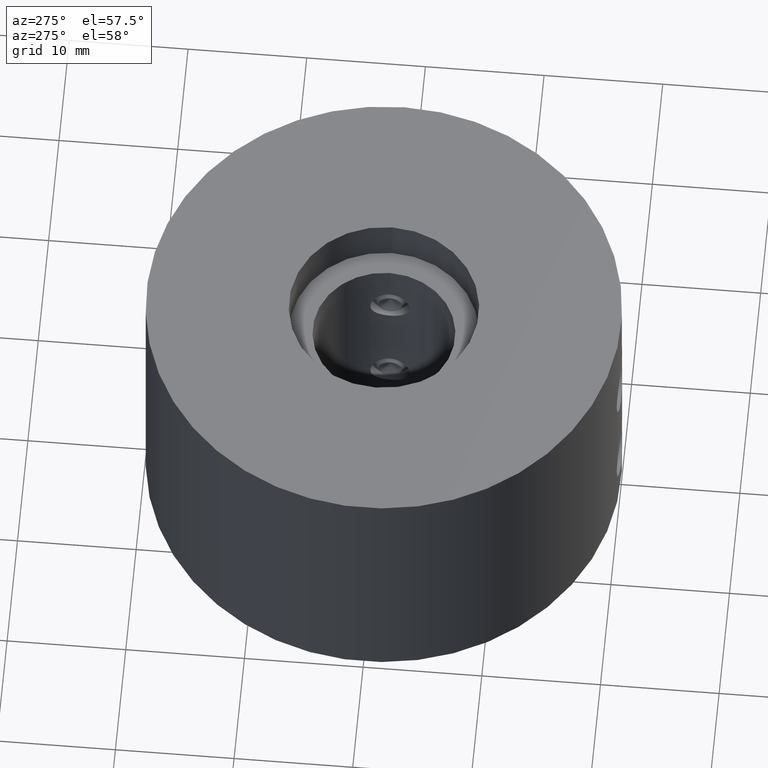
[diagram: clean part render]
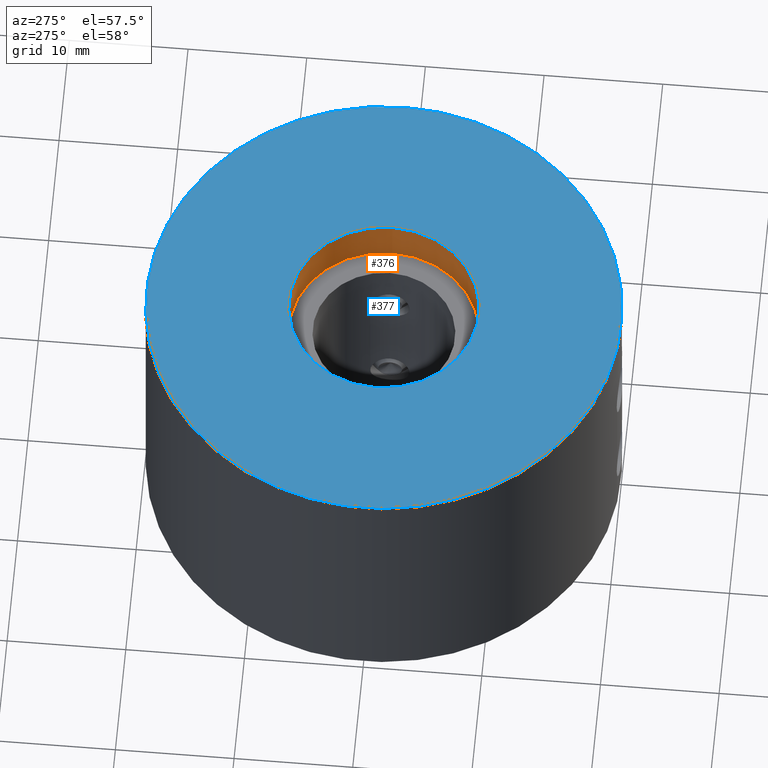
[diagram: same view with the hole feature highlighted: cylindrical wall and planar end face, labeled with their STEP entity ids]
A machine part, auxiliary view. The highlighted faces form one hole feature of diameter 16 mm: the cylindrical wall (entity #376, orange) and its adjacent planar end face (entity #377, blue) — they share a circular edge in the B-rep.
Wall:
#376 = ADVANCED_FACE( '', ( #489, #490 ), #491, .F. );
#489 = FACE_OUTER_BOUND( '', #661, .T. );
#490 = FACE_OUTER_BOUND( '', #662, .T. );
#491 = CYLINDRICAL_SURFACE( '', #663, 8.00000000000000 );
#661 = EDGE_LOOP( '', ( #867 ) );
#662 = EDGE_LOOP( '', ( #868 ) );
#663 = AXIS2_PLACEMENT_3D( '', #869, #870, #871 );
#867 = ORIENTED_EDGE( '', *, *, #1208, .F. );
#868 = ORIENTED_EDGE( '', *, *, #1209, .T. );
#869 = CARTESIAN_POINT( '', ( 0.000000000000000, 0.000000000000000, -14.0000000000000 ) );
#870 = DIRECTION( '', ( -0.000000000000000, 0.000000000000000, -1.00000000000000 ) );
#871 = DIRECTION( '', ( -1.00000000000000, 0.000000000000000, 0.000000000000000 ) );
#1208 = EDGE_CURVE( '', #1342, #1342, #1343, .T. );
#1209 = EDGE_CURVE( '', #1344, #1344, #1345, .T. );
#1342 = VERTEX_POINT( '', #1998 );
#1343 = CIRCLE( '', #1999, 8.00000000000000 );
#1344 = VERTEX_POINT( '', #2000 );
#1345 = CIRCLE( '', #2001, 8.00000000000000 );
#1998 = CARTESIAN_POINT( '', ( 8.00000000000000, 0.000000000000000, -14.0000000000000 ) );
#1999 = AXIS2_PLACEMENT_3D( '', #2356, #2357, #2358 );
#2000 = CARTESIAN_POINT( '', ( 8.00000000000000, 0.000000000000000, -10.0000000000000 ) );
#2001 = AXIS2_PLACEMENT_3D( '', #2359, #2360, #2361 );
#2356 = CARTESIAN_POINT( '', ( 0.000000000000000, 0.000000000000000, -14.0000000000000 ) );
#2357 = DIRECTION( '', ( 0.000000000000000, -0.000000000000000, 1.00000000000000 ) );
#2358 = DIRECTION( '', ( 1.00000000000000, 0.000000000000000, 0.000000000000000 ) );
#2359 = CARTESIAN_POINT( '', ( 0.000000000000000, 0.000000000000000, -10.0000000000000 ) );
#2360 = DIRECTION( '', ( 0.000000000000000, -0.000000000000000, 1.00000000000000 ) );
#2361 = DIRECTION( '', ( 1.00000000000000, 0.000000000000000, 0.000000000000000 ) );
End face:
#377 = ADVANCED_FACE( '', ( #492, #493 ), #494, .F. );
#492 = FACE_OUTER_BOUND( '', #664, .T. );
#493 = FACE_BOUND( '', #665, .T. );
#494 = PLANE( '', #666 );
#664 = EDGE_LOOP( '', ( #872 ) );
#665 = EDGE_LOOP( '', ( #873 ) );
#666 = AXIS2_PLACEMENT_3D( '', #874, #875, #876 );
#872 = ORIENTED_EDGE( '', *, *, #1207, .T. );
#873 = ORIENTED_EDGE( '', *, *, #1209, .F. );
#874 = CARTESIAN_POINT( '', ( 0.000000000000000, 0.000000000000000, -10.0000000000000 ) );
#875 = DIRECTION( '', ( 0.000000000000000, 0.000000000000000, -1.00000000000000 ) );
#876 = DIRECTION( '', ( 1.00000000000000, 0.000000000000000, 0.000000000000000 ) );
#1207 = EDGE_CURVE( '', #1340, #1340, #1341, .T. );
#1209 = EDGE_CURVE( '', #1344, #1344, #1345, .T. );
#1340 = VERTEX_POINT( '', #1996 );
#1341 = CIRCLE( '', #1997, 20.0000000000000 );
#1344 = VERTEX_POINT( '', #2000 );
#1345 = CIRCLE( '', #2001, 8.00000000000000 );
#1996 = CARTESIAN_POINT( '', ( 20.0000000000000, 0.000000000000000, -10.0000000000000 ) );
#1997 = AXIS2_PLACEMENT_3D( '', #2353, #2354, #2355 );
#2000 = CARTESIAN_POINT( '', ( 8.00000000000000, 0.000000000000000, -10.0000000000000 ) );
#2001 = AXIS2_PLACEMENT_3D( '', #2359, #2360, #2361 );
#2353 = CARTESIAN_POINT( '', ( 0.000000000000000, 0.000000000000000, -10.0000000000000 ) );
#2354 = DIRECTION( '', ( 0.000000000000000, -0.000000000000000, 1.00000000000000 ) );
#2355 = DIRECTION( '', ( 1.00000000000000, 0.000000000000000, 0.000000000000000 ) );
#2359 = CARTESIAN_POINT( '', ( 0.000000000000000, 0.000000000000000, -10.0000000000000 ) );
#2360 = DIRECTION( '', ( 0.000000000000000, -0.000000000000000, 1.00000000000000 ) );
#2361 = DIRECTION( '', ( 1.00000000000000, 0.000000000000000, 0.000000000000000 ) );